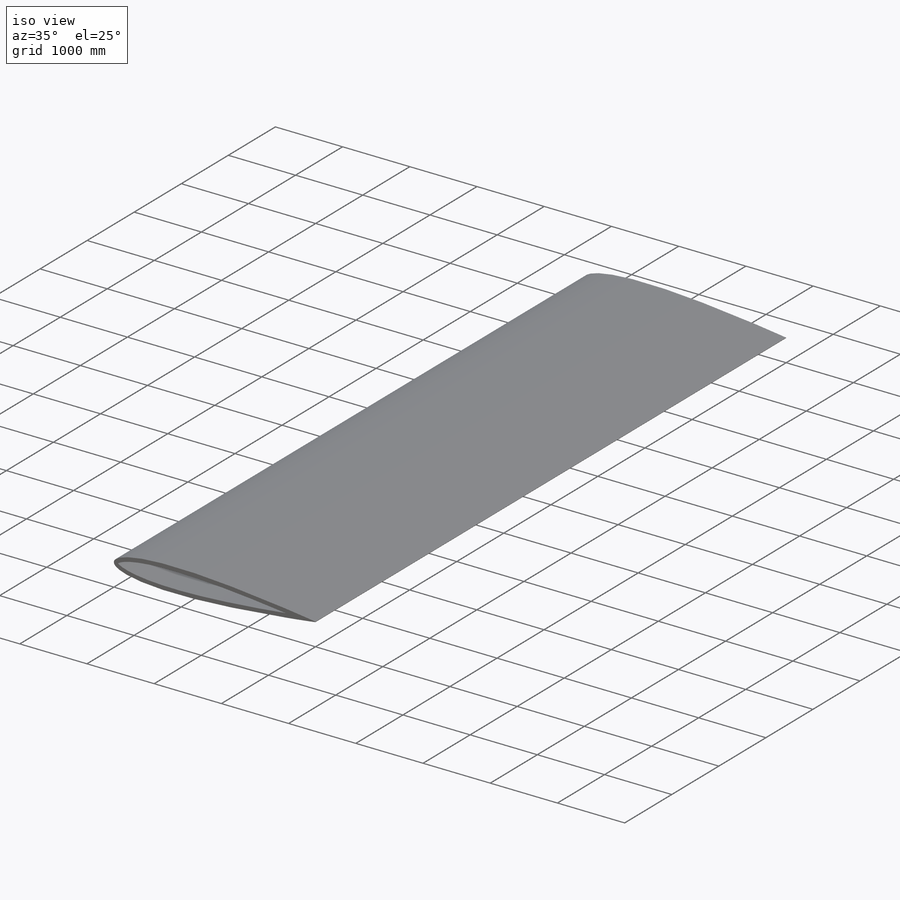
[diagram: iso view]
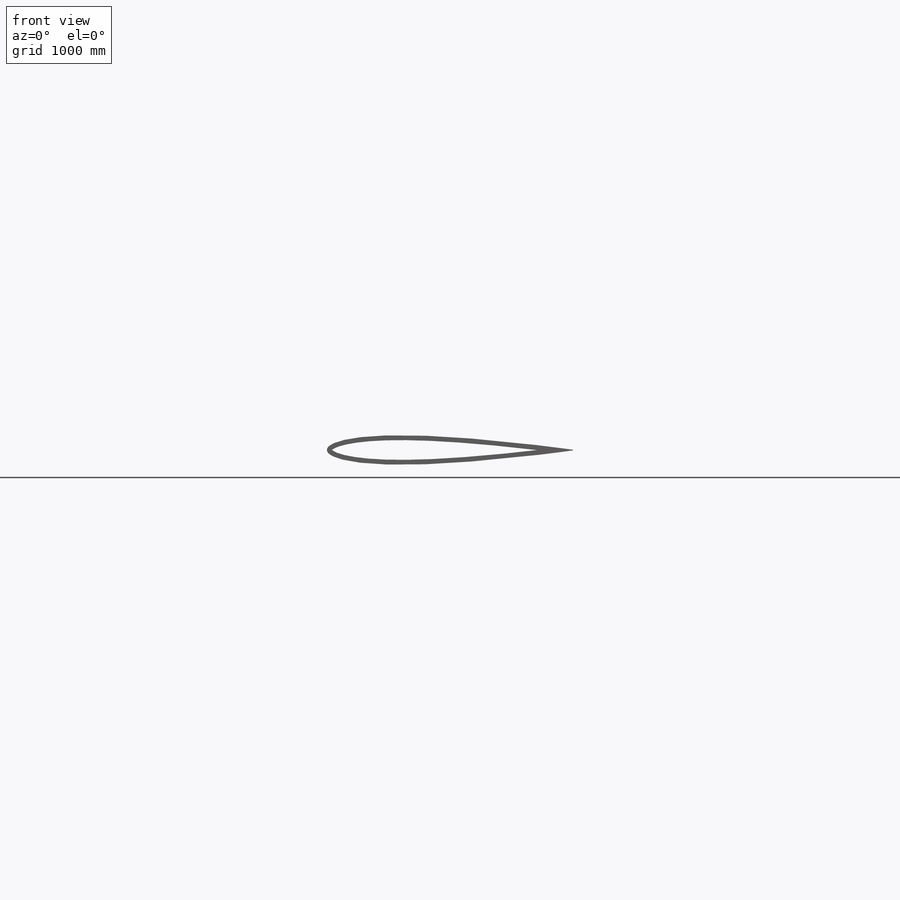
[diagram: front view]
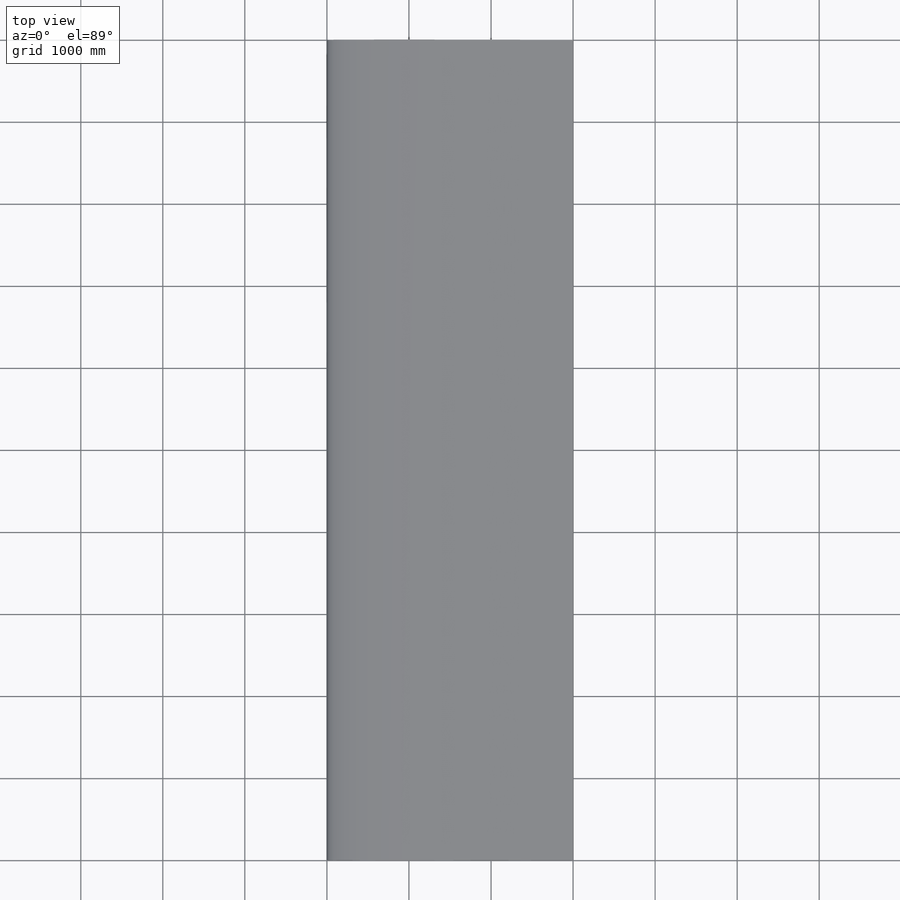
[diagram: top view]
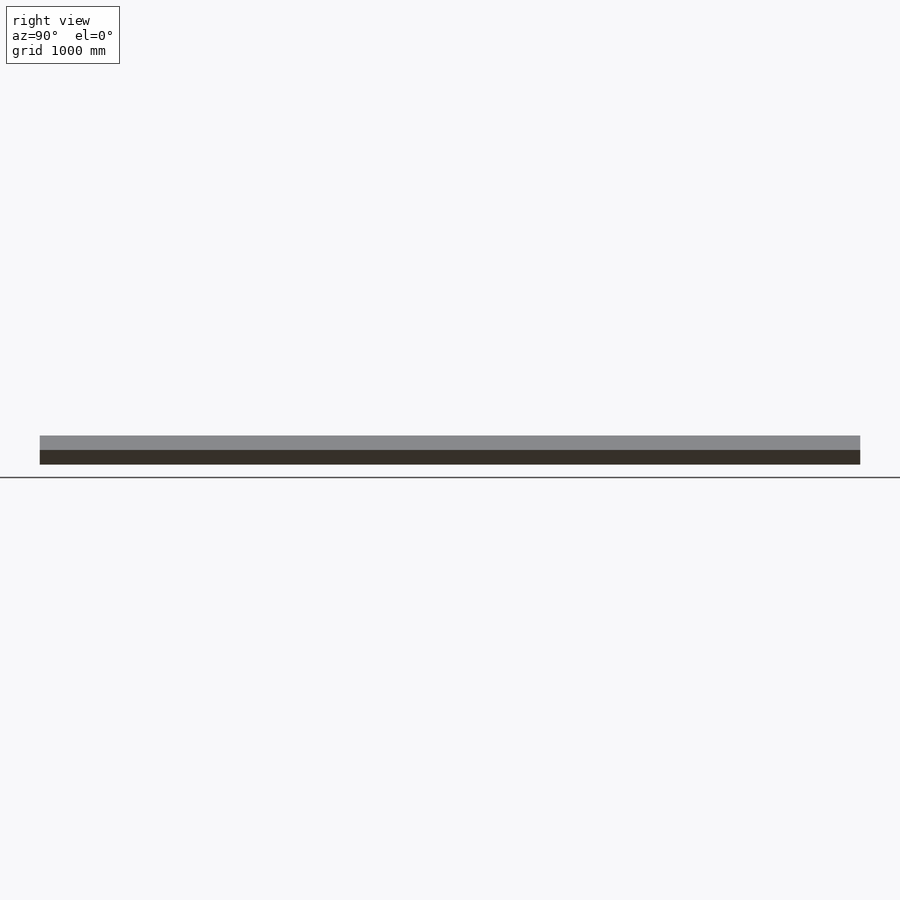
[diagram: right view]
SOLIDWORKS PART (.sldprt)
format: sldprt  version: not decoded by parser v0  size: 258,560 bytes
history: native  units: mm
features: sketch x5, extrude x2, cut_extrude x2, material x1, pattern_linear x1, shell x1 (+13 scaffold rows collapsed)
feature tree (25):
  scaffold x13  (default folders/planes/origin — collapsed)
  material  "Custom Polymer"
  sketch  "Sketch1"  dims[c1.D1=6.2865mm c1.D3=5.9436mm c1.D4=~5.953125mm c1.D2=5.6515mm c2.D4=35.56mm c2.D5=44.45mm c2.D6=14.2875mm c2.D1=3000.0mm]
  extrude  "Boss-Extrude1"  Depth=10000mm
  sketch  "Sketch3"  dims[D2=7.9375mm D3=7.9375mm D1=6.35mm D4=6.35mm]
  extrude  "Boss-Extrude2"  Depth=6.35mm
  pattern_linear  "LPattern1"  Count1=3 Count2=1 Spacing1=69.85mm Spacing2=50mm
  sketch  "Sketch5"  dims[D1=0.0mm]
  cut_extrude  "Cut-Extrude1"  Depth=6.35mm
  sketch  "Sketch6"  dims[D1=0.0mm]
  cut_extrude  "Cut-Extrude2"  Depth=6.35mm
  sketch  "Sketch8"
  shell  "Shell1"  Thickness=60mm
decode coverage: 10 of 11 modeling features carry decoded parameters
note: ~ marks probable driven/reference dimensions
note: suppression state not decoded; provenance and decode notes live in map.json
